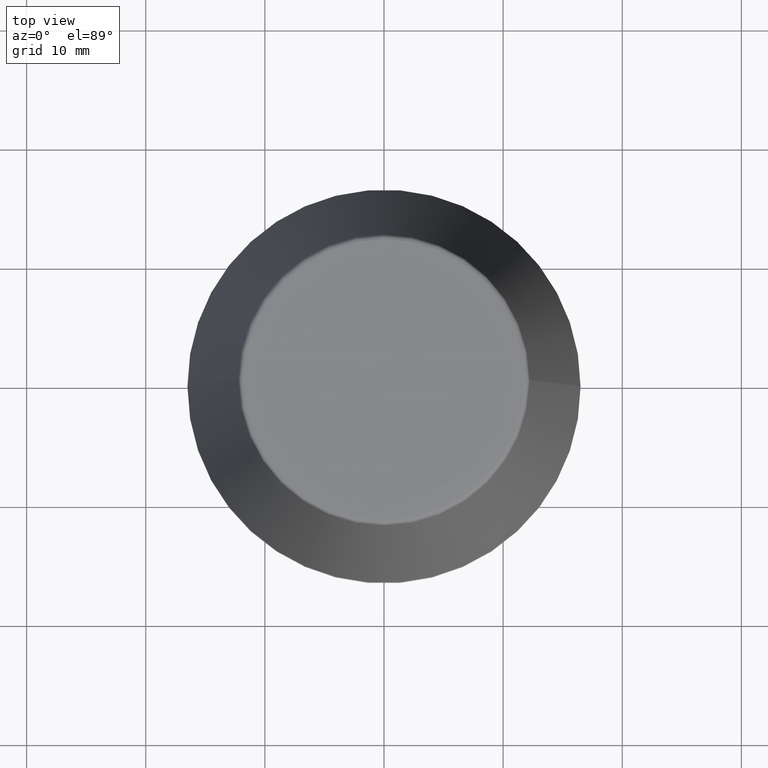
[diagram: clean part render]
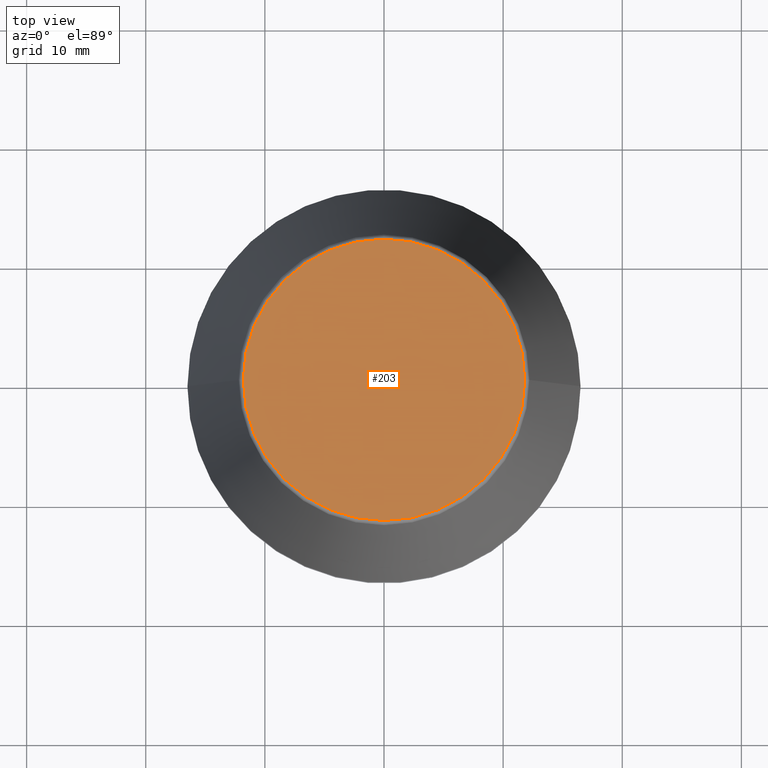
[diagram: same view with one face highlighted and labeled with its STEP entity id]
A machine part, top view. The second image highlights one B-rep face of the part: STEP entity #203.
In plain terms, the highlighted planar face has unit normal (0, 0, -1).
Its self-contained STEP definition (entity closure, byte-faithful):
#44 = DIRECTION ( 'NONE',  ( -1.000000000000000000, 0.0000000000000000000, -0.0000000000000000000 ) ) ;
#62 = CIRCLE ( 'NONE', #287, 11.80989888411031400 ) ;
#90 = CARTESIAN_POINT ( 'NONE',  ( 11.80989888411031400, 0.0000000000000000000, 40.00000000000000700 ) ) ;
#130 = CARTESIAN_POINT ( 'NONE',  ( 0.0000000000000000000, 0.0000000000000000000, 40.00000000000000700 ) ) ;
#151 = DIRECTION ( 'NONE',  ( 1.000000000000000000, 0.0000000000000000000, 0.0000000000000000000 ) ) ;
#159 = DIRECTION ( 'NONE',  ( 1.000000000000000000, 0.0000000000000000000, 0.0000000000000000000 ) ) ;
#168 = ORIENTED_EDGE ( 'NONE', *, *, #208, .T. ) ;
#176 = EDGE_CURVE ( 'NONE', #198, #259, #291, .T. ) ;
#180 = PLANE ( 'NONE',  #276 ) ;
#198 = VERTEX_POINT ( 'NONE', #90 ) ;
#203 = ADVANCED_FACE ( 'NONE', ( #315 ), #180, .F. ) ;
#206 = CARTESIAN_POINT ( 'NONE',  ( 0.0000000000000000000, 11.80989888411031400, 40.00000000000000700 ) ) ;
#208 = EDGE_CURVE ( 'NONE', #259, #198, #62, .T. ) ;
#215 = DIRECTION ( 'NONE',  ( -0.0000000000000000000, -0.0000000000000000000, 1.000000000000000000 ) ) ;
#222 = DIRECTION ( 'NONE',  ( 0.0000000000000000000, 0.0000000000000000000, -1.000000000000000000 ) ) ;
#241 = ORIENTED_EDGE ( 'NONE', *, *, #176, .T. ) ;
#259 = VERTEX_POINT ( 'NONE', #290 ) ;
#276 = AXIS2_PLACEMENT_3D ( 'NONE', #206, #222, #44 ) ;
#277 = CARTESIAN_POINT ( 'NONE',  ( 0.0000000000000000000, 0.0000000000000000000, 40.00000000000000700 ) ) ;
#287 = AXIS2_PLACEMENT_3D ( 'NONE', #130, #336, #159 ) ;
#290 = CARTESIAN_POINT ( 'NONE',  ( -11.80989888411031400, 1.470550059081603400E-015, 40.00000000000000700 ) ) ;
#291 = CIRCLE ( 'NONE', #308, 11.80989888411031400 ) ;
#308 = AXIS2_PLACEMENT_3D ( 'NONE', #277, #215, #151 ) ;
#315 = FACE_OUTER_BOUND ( 'NONE', #379, .T. ) ;
#336 = DIRECTION ( 'NONE',  ( -0.0000000000000000000, -0.0000000000000000000, 1.000000000000000000 ) ) ;
#379 = EDGE_LOOP ( 'NONE', ( #241, #168 ) ) ;